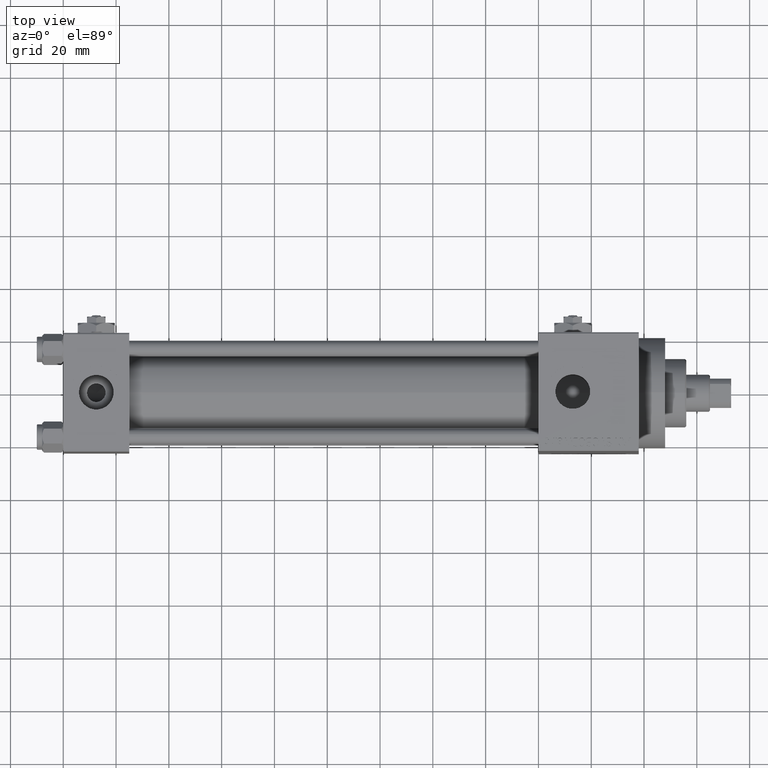
[diagram: clean part render]
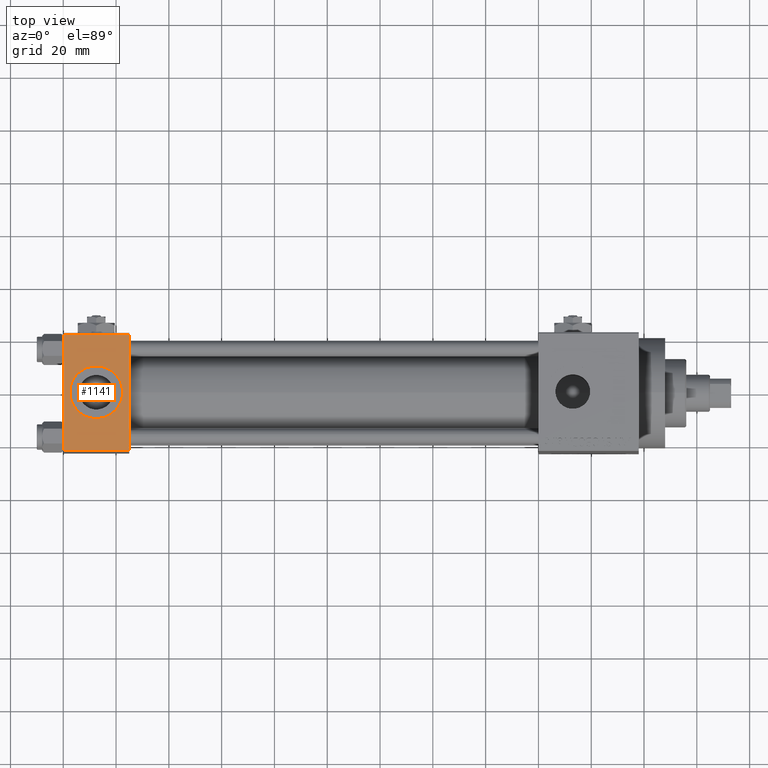
[diagram: same view with one face highlighted and labeled with its STEP entity id]
A machine part, top view. The second image highlights one B-rep face of the part: STEP entity #1141.
In plain terms, the highlighted planar face has unit normal (0, 0, -1).
Its self-contained STEP definition (entity closure, byte-faithful):
#1141 = ADVANCED_FACE ( 'NONE', ( #1227, #31669 ), #46871, .F. ) ;
#1227 = FACE_BOUND ( 'NONE', #45107, .T. ) ;
#2409 = LINE ( 'NONE', #17637, #7985 ) ;
#2462 = EDGE_CURVE ( 'NONE', #39745, #38106, #8936, .T. ) ;
#2709 = DIRECTION ( 'NONE',  ( 0.000000000000000000, 1.000000000000000000, 7.709882115452476934E-17 ) ) ;
#4367 = AXIS2_PLACEMENT_3D ( 'NONE', #24149, #9449, #39387 ) ;
#7157 = EDGE_LOOP ( 'NONE', ( #47600, #42812, #27528, #19461 ) ) ;
#7627 = LINE ( 'NONE', #18843, #18716 ) ;
#7985 = VECTOR ( 'NONE', #13902, 1000.000000000000000 ) ;
#8165 = AXIS2_PLACEMENT_3D ( 'NONE', #31273, #46472, #41528 ) ;
#8936 = CIRCLE ( 'NONE', #8165, 9.999999999999998224 ) ;
#9449 = DIRECTION ( 'NONE',  ( 0.000000000000000000, 0.000000000000000000, 1.000000000000000000 ) ) ;
#13902 = DIRECTION ( 'NONE',  ( 1.000000000000000000, 0.000000000000000000, 0.000000000000000000 ) ) ;
#15481 = CARTESIAN_POINT ( 'NONE',  ( 0.000000000000000000, 21.99999999999999289, 22.50000000000000355 ) ) ;
#15966 = CARTESIAN_POINT ( 'NONE',  ( 0.000000000000000000, -21.99999999999997868, 22.50000000000000000 ) ) ;
#15976 = CARTESIAN_POINT ( 'NONE',  ( 25.00000000000000000, -21.99999999999997868, 22.50000000000000000 ) ) ;
#16084 = VERTEX_POINT ( 'NONE', #15481 ) ;
#17448 = DIRECTION ( 'NONE',  ( 0.000000000000000000, 7.709882115452476934E-17, -1.000000000000000000 ) ) ;
#17637 = CARTESIAN_POINT ( 'NONE',  ( 25.00000000000000000, -21.99999999999999289, 22.50000000000000000 ) ) ;
#18386 = VECTOR ( 'NONE', #35497, 1000.000000000000000 ) ;
#18716 = VECTOR ( 'NONE', #34072, 1000.000000000000000 ) ;
#18843 = CARTESIAN_POINT ( 'NONE',  ( 0.000000000000000000, 22.50000000000000000, 22.50000000000000355 ) ) ;
#19461 = ORIENTED_EDGE ( 'NONE', *, *, #38183, .T. ) ;
#20398 = CARTESIAN_POINT ( 'NONE',  ( 25.00000000000000000, 21.99999999999999289, 22.50000000000000355 ) ) ;
#22107 = DIRECTION ( 'NONE',  ( -1.000000000000000000, 0.000000000000000000, 0.000000000000000000 ) ) ;
#24149 = CARTESIAN_POINT ( 'NONE',  ( 12.50000000000000000, -1.734723475976807094E-15, 22.50000000000000000 ) ) ;
#24356 = EDGE_CURVE ( 'NONE', #32750, #33546, #2409, .T. ) ;
#25740 = EDGE_CURVE ( 'NONE', #26836, #33546, #35013, .T. ) ;
#26053 = ORIENTED_EDGE ( 'NONE', *, *, #43495, .F. ) ;
#26566 = CARTESIAN_POINT ( 'NONE',  ( 0.000000000000000000, 21.99999999999999289, 22.50000000000000355 ) ) ;
#26836 = VERTEX_POINT ( 'NONE', #20398 ) ;
#27528 = ORIENTED_EDGE ( 'NONE', *, *, #25740, .F. ) ;
#31273 = CARTESIAN_POINT ( 'NONE',  ( 12.50000000000000000, -1.734723475976807094E-15, 22.50000000000000000 ) ) ;
#31669 = FACE_OUTER_BOUND ( 'NONE', #7157, .T. ) ;
#32750 = VERTEX_POINT ( 'NONE', #15966 ) ;
#33546 = VERTEX_POINT ( 'NONE', #15976 ) ;
#34072 = DIRECTION ( 'NONE',  ( 0.000000000000000000, -1.000000000000000000, -7.709882115452476934E-17 ) ) ;
#35013 = LINE ( 'NONE', #46219, #18386 ) ;
#35497 = DIRECTION ( 'NONE',  ( 0.000000000000000000, -1.000000000000000000, -7.709882115452476934E-17 ) ) ;
#35585 = ORIENTED_EDGE ( 'NONE', *, *, #2462, .F. ) ;
#38106 = VERTEX_POINT ( 'NONE', #48034 ) ;
#38183 = EDGE_CURVE ( 'NONE', #26836, #16084, #41793, .T. ) ;
#39387 = DIRECTION ( 'NONE',  ( 1.000000000000000000, 0.000000000000000000, 0.000000000000000000 ) ) ;
#39745 = VERTEX_POINT ( 'NONE', #47301 ) ;
#41528 = DIRECTION ( 'NONE',  ( 1.000000000000000000, 0.000000000000000000, 0.000000000000000000 ) ) ;
#41793 = LINE ( 'NONE', #26566, #48166 ) ;
#42519 = EDGE_CURVE ( 'NONE', #16084, #32750, #7627, .T. ) ;
#42812 = ORIENTED_EDGE ( 'NONE', *, *, #24356, .T. ) ;
#43495 = EDGE_CURVE ( 'NONE', #38106, #39745, #47375, .T. ) ;
#45107 = EDGE_LOOP ( 'NONE', ( #26053, #35585 ) ) ;
#46219 = CARTESIAN_POINT ( 'NONE',  ( 25.00000000000000000, 22.50000000000000000, 22.50000000000000355 ) ) ;
#46472 = DIRECTION ( 'NONE',  ( 0.000000000000000000, 0.000000000000000000, 1.000000000000000000 ) ) ;
#46871 = PLANE ( 'NONE',  #48713 ) ;
#47301 = CARTESIAN_POINT ( 'NONE',  ( 2.500000000000003997, -5.100766768294543310E-16, 22.50000000000000000 ) ) ;
#47375 = CIRCLE ( 'NONE', #4367, 9.999999999999998224 ) ;
#47600 = ORIENTED_EDGE ( 'NONE', *, *, #42519, .T. ) ;
#48034 = CARTESIAN_POINT ( 'NONE',  ( 22.50000000000000000, -1.734723475976807094E-15, 22.50000000000000000 ) ) ;
#48166 = VECTOR ( 'NONE', #22107, 1000.000000000000000 ) ;
#48602 = CARTESIAN_POINT ( 'NONE',  ( 25.00000000000000000, 22.50000000000000000, 22.50000000000000355 ) ) ;
#48713 = AXIS2_PLACEMENT_3D ( 'NONE', #48602, #17448, #2709 ) ;